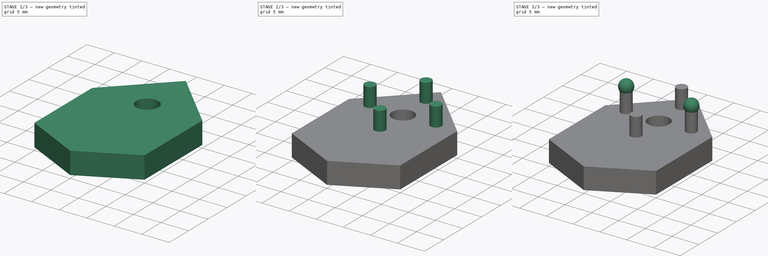
[diagram: build sequence overview — one tinted view per stage of 3, left to right]
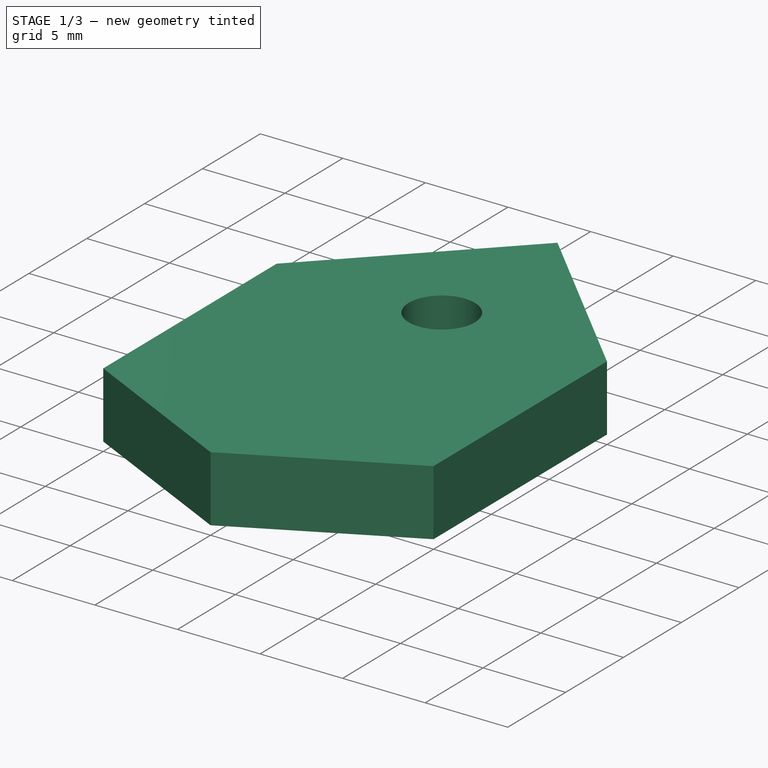
[diagram: stage 1 of 3 — iso view after this stage's code; geometry added in this stage tinted green]
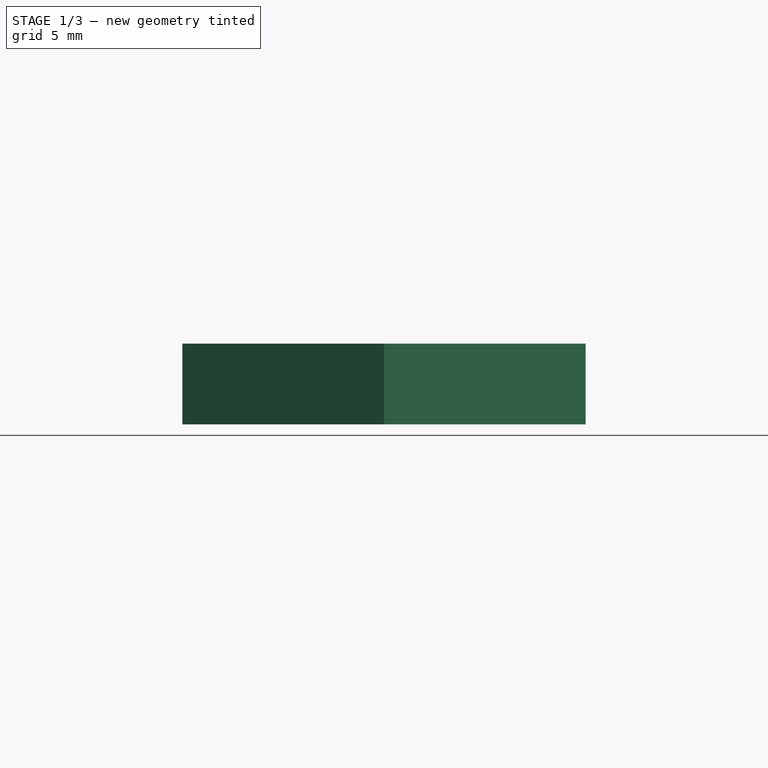
[diagram: stage 1 of 3 — front view after this stage's code; geometry added in this stage tinted green]
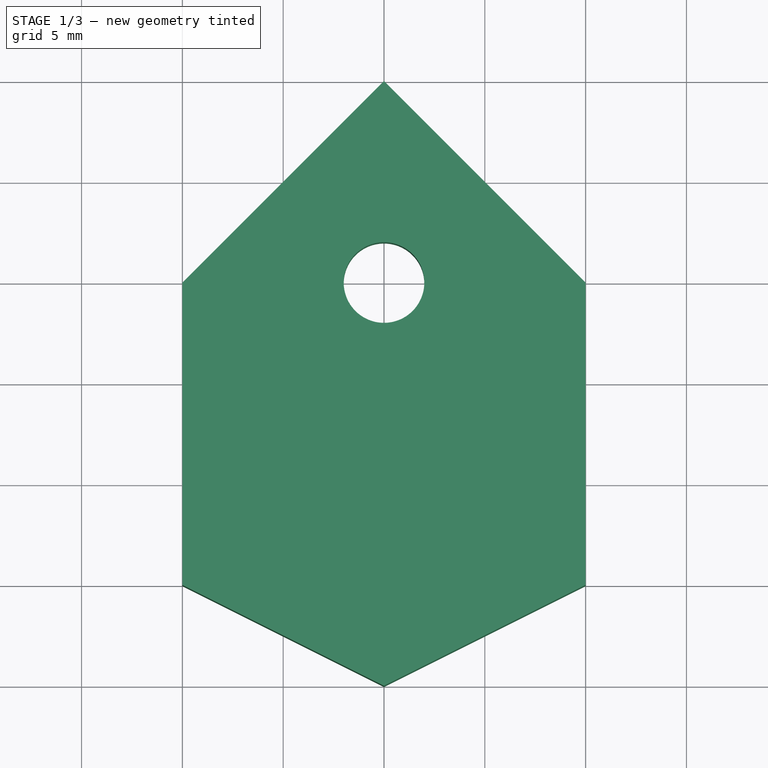
[diagram: stage 1 of 3 — top view after this stage's code; geometry added in this stage tinted green]
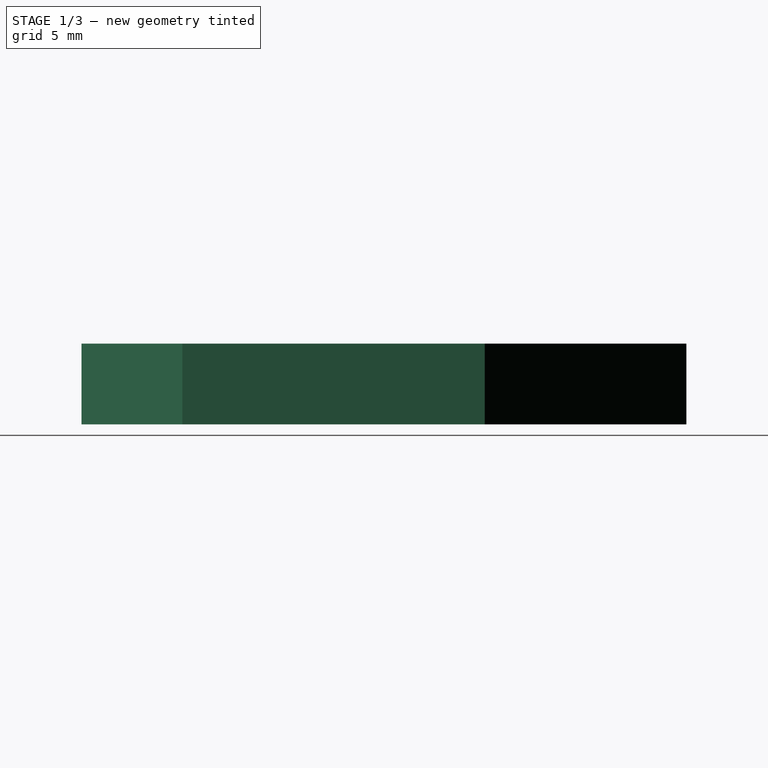
[diagram: stage 1 of 3 — right view after this stage's code; geometry added in this stage tinted green]
FCSTD DOCUMENT  (FreeCAD 0.18R4 (GitTag))
Label: monopole_mount
License: All rights reserved
LicenseURL: http://en.wikipedia.org/wiki/All_rights_reserved
objects: Sketcher::SketchObject×7, PartDesign::Pad×2, PartDesign::Revolution×2, PartDesign::Pocket×1, PartDesign::Body×1
note: 18 computed .brp shape members not serialized (recipe doc carries the construction recipe); baked Part::Feature solids carry a one-line shape summary decoded from their .brp

FEATURE [Sketcher::SketchObject] Sketch
  MapMode = 5
  Support = -> [XY_Plane]
  sketch-geometry (6):
    g0: LineSegment StartX=-10 StartY=0 StartZ=0 EndX=0 EndY=10 EndZ=0
    g1: LineSegment StartX=0 StartY=10 StartZ=0 EndX=10 EndY=0 EndZ=0
    g2: LineSegment StartX=10 StartY=0 StartZ=0 EndX=10 EndY=-15 EndZ=0
    g3: LineSegment StartX=10 StartY=-15 StartZ=0 EndX=0 EndY=-20 EndZ=0
    g4: LineSegment StartX=0 StartY=-20 StartZ=0 EndX=-10 EndY=-15 EndZ=0
    g5: LineSegment StartX=-10 StartY=-15 StartZ=0 EndX=-10 EndY=0 EndZ=0
  constraints (18):
    c: Coincident(g0,g1)
    c: Coincident(g1,g2)
    c: Coincident(g2,g3)
    c: Coincident(g3,g4)
    c: Coincident(g4,g5)
    c: Coincident(g5,g0)
    c: DistanceX(g-1,g1) = 10
    c: DistanceX(g0,g-1) = 10
    c: Vertical(g5)
    c: Vertical(g2)
    c: DistanceY(g2,g-1) = 15
    c: DistanceY(g4,g-1) = 15
    c: DistanceY(g-1,g0) = 10
    c: PointOnObject(g0,g-2)
    c: PointOnObject(g0,g-1)
    c: PointOnObject(g1,g-1)
    c: PointOnObject(g3,g-2)
    c: DistanceY(g3,g-1) = 20
FEATURE [PartDesign::Pad] Pad
  Length = 4
  Length2 = 100
  Profile = -> Sketch
  Type = 0
FEATURE [Sketcher::SketchObject] Sketch001
  MapMode = 5
  Placement = pos=(0,0,4) rot=(0,0,1;0rad)
  Support = -> [Pad]
  sketch-geometry (1):
    g0: Circle CenterX=0 CenterY=0 CenterZ=0 NormalX=0 NormalY=0 NormalZ=1 AngleXU=0 Radius=2
  constraints (2):
    c: Coincident(g-1,g0)
    c: Radius(g0) = 2
FEATURE [PartDesign::Pocket] Pocket
  BaseFeature = -> Pad
  Length = 5
  Length2 = 100
  Profile = -> Sketch001
  Type = 0
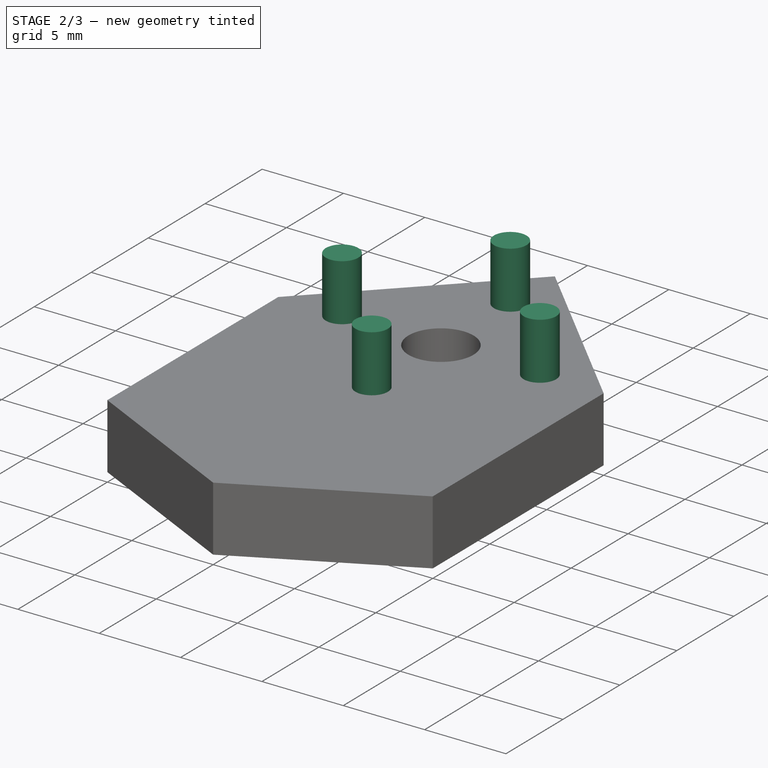
[diagram: stage 2 of 3 — iso view after this stage's code; geometry added in this stage tinted green]
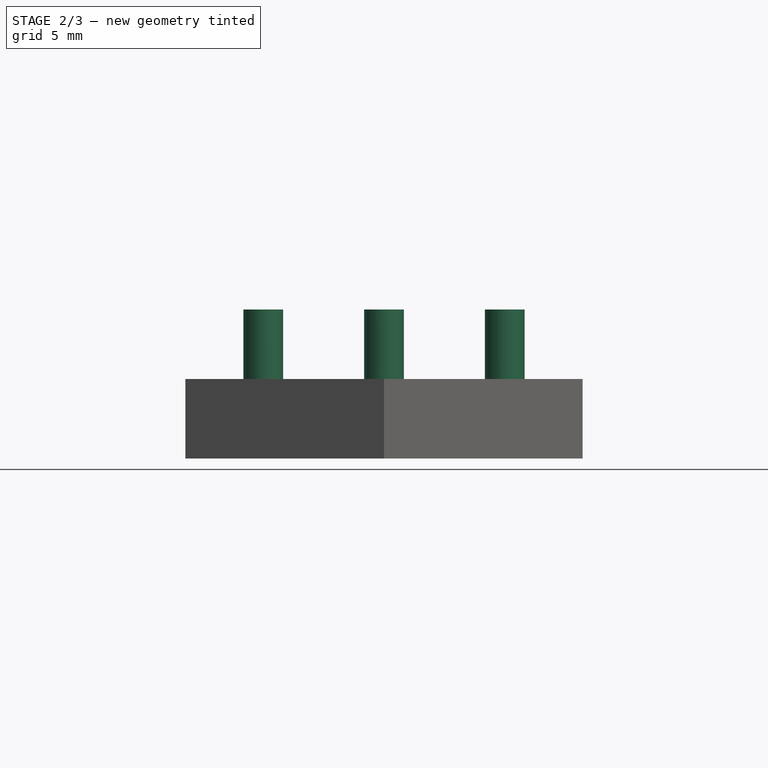
[diagram: stage 2 of 3 — front view after this stage's code; geometry added in this stage tinted green]
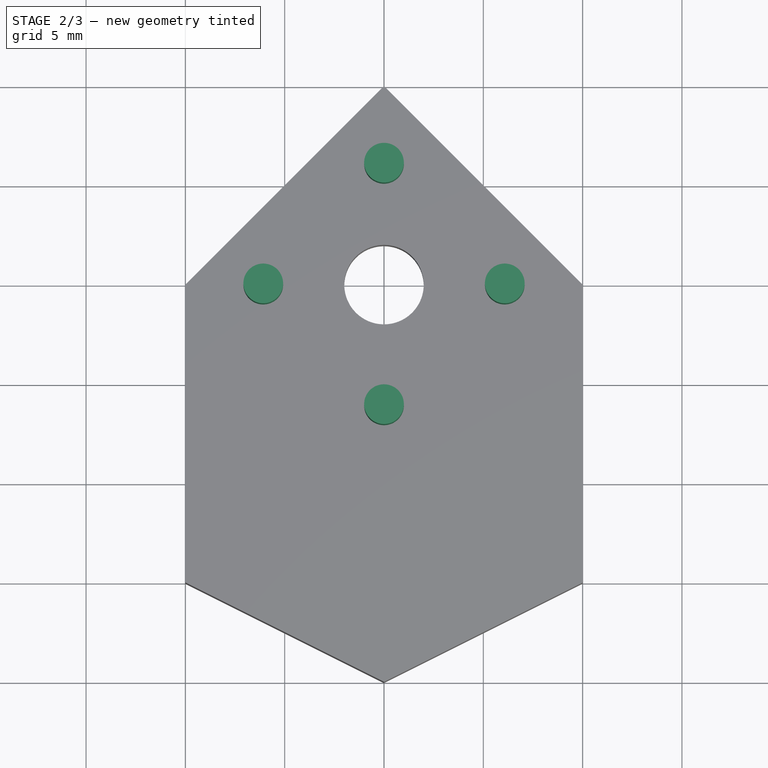
[diagram: stage 2 of 3 — top view after this stage's code; geometry added in this stage tinted green]
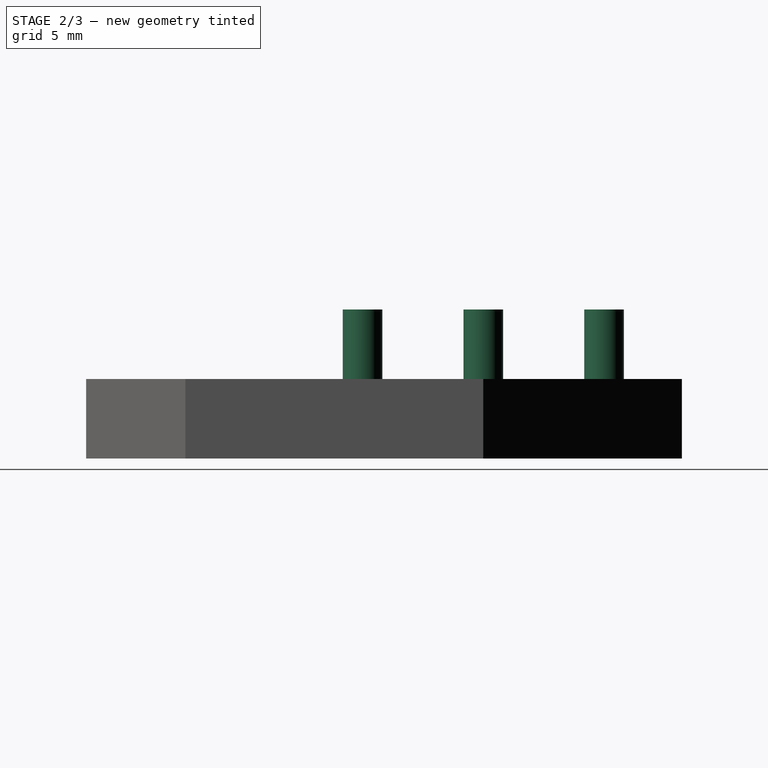
[diagram: stage 2 of 3 — right view after this stage's code; geometry added in this stage tinted green]
FEATURE [Sketcher::SketchObject] Sketch002
  MapMode = 5
  Placement = pos=(0,0,4) rot=(0,0,1;0rad)
  Support = -> [Pocket]
  sketch-geometry (4):
    g0: Circle CenterX=0 CenterY=6.08 CenterZ=0 NormalX=0 NormalY=0 NormalZ=1 AngleXU=0 Radius=1
    g1: Circle CenterX=-6.08 CenterY=0 CenterZ=0 NormalX=0 NormalY=0 NormalZ=1 AngleXU=0 Radius=1
    g2: Circle CenterX=6.08 CenterY=0 CenterZ=0 NormalX=0 NormalY=0 NormalZ=1 AngleXU=0 Radius=1
    g3: Circle CenterX=0 CenterY=-6.08 CenterZ=0 NormalX=0 NormalY=0 NormalZ=1 AngleXU=0 Radius=1
  constraints (12):
    c: PointOnObject(g0,g-2)
    c: PointOnObject(g2,g-1)
    c: PointOnObject(g1,g-1)
    c: PointOnObject(g3,g-2)
    c: DistanceY(g-1,g0) = 6.08
    c: DistanceY(g3,g-1) = 6.08
    c: DistanceX(g-1,g2) = 6.08
    c: DistanceX(g1,g-1) = 6.08
    c: Radius(g0) = 1
    c: Radius(g2) = 1
    c: Radius(g3) = 1
    c: Radius(g1) = 1
FEATURE [PartDesign::Pad] Pad001
  BaseFeature = -> Pocket
  Length = 3.5
  Length2 = 100
  Profile = -> Sketch002
  Type = 0
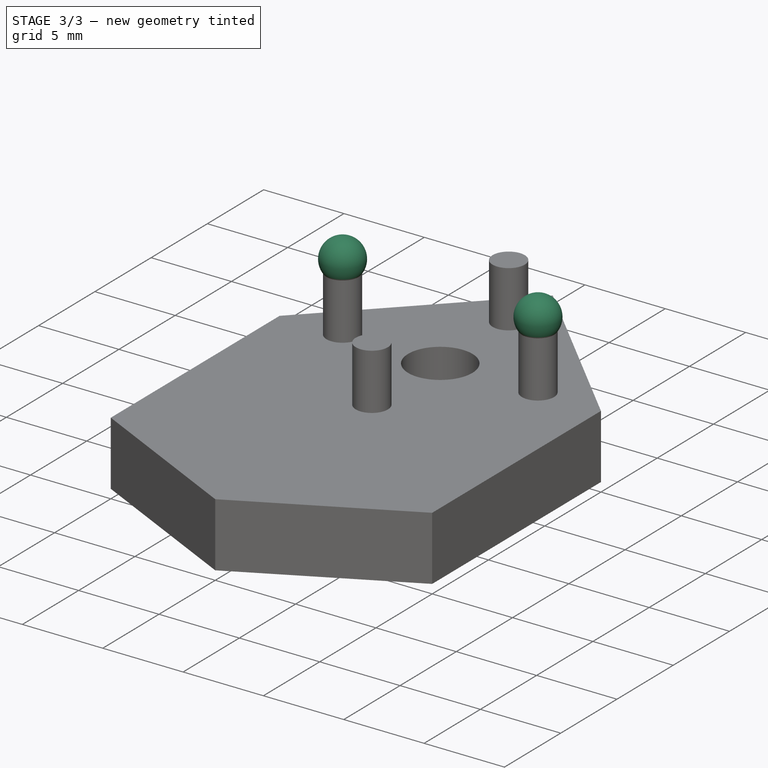
[diagram: stage 3 of 3 — iso view after this stage's code; geometry added in this stage tinted green]
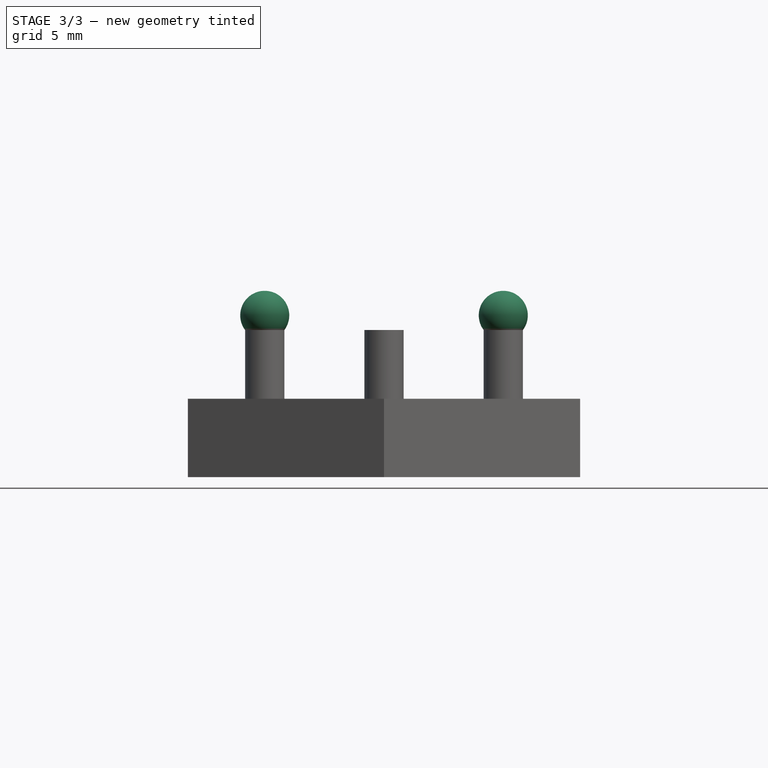
[diagram: stage 3 of 3 — front view after this stage's code; geometry added in this stage tinted green]
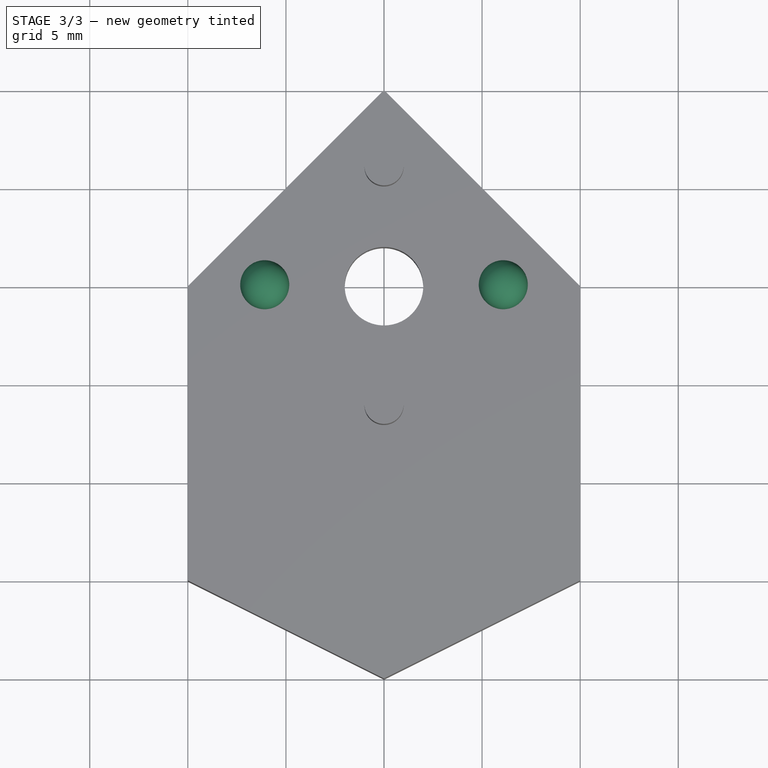
[diagram: stage 3 of 3 — top view after this stage's code; geometry added in this stage tinted green]
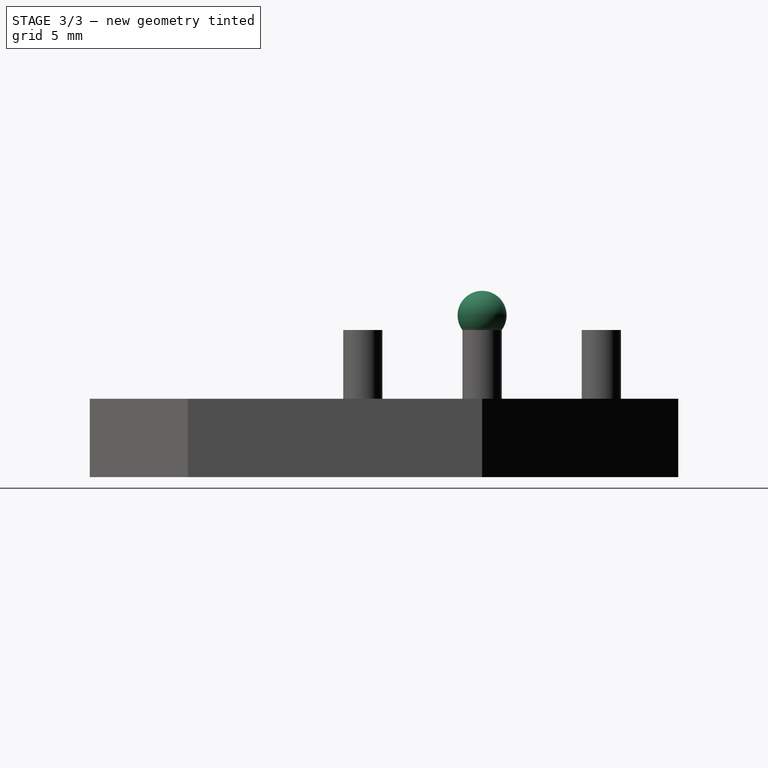
[diagram: stage 3 of 3 — right view after this stage's code; geometry added in this stage tinted green]
FEATURE [Sketcher::SketchObject] Sketch006
  MapMode = 5
  Placement = pos=(0,0,0) rot=(1,0,0;1.5708rad)
  sketch-geometry (3):
    g0: ArcOfCircle CenterX=-6.08 CenterY=8.25 CenterZ=0 NormalX=0 NormalY=0 NormalZ=1 AngleXU=0 Radius=1.25 StartAngle=1.5708 EndAngle=3.78509
    g1: LineSegment StartX=-7.08 StartY=7.5 StartZ=0 EndX=-6.08 EndY=7.5 EndZ=0
    g2: LineSegment StartX=-6.08 StartY=7.5 StartZ=0 EndX=-6.08 EndY=9.5 EndZ=0
  constraints (10):
    c: DistanceX(g0,g-1) = 6.08
    c: DistanceX(g0,g-1) = 6.08
    c: DistanceY(g-1,g0) = 9.5
    c: DistanceX(g0,g0) = 1
    c: Coincident(g1,g2)
    c: Coincident(g0,g1)
    c: Coincident(g0,g2)
    c: DistanceY(g-1,g1) = 7.5
    c: DistanceX(g0,g1) = 1
    c: DistanceY(g0,g0) = 0.75
FEATURE [Sketcher::SketchObject] Sketch007
  MapMode = 5
  Placement = pos=(0,0,0) rot=(1,0,0;1.5708rad)
  sketch-geometry (2):
    g0: LineSegment StartX=-7.08 StartY=7.5 StartZ=0 EndX=-6.08 EndY=7.5 EndZ=0
    g1: LineSegment StartX=-6.08 StartY=7.5 StartZ=0 EndX=-6.08 EndY=9.5 EndZ=0
  constraints (5):
    c: DistanceX(g1,g-1) = 6.08
    c: DistanceY(g-1,g1) = 9.5
    c: Coincident(g0,g1)
    c: DistanceY(g-1,g0) = 7.5
    c: DistanceX(g0,g0) = 1
FEATURE [PartDesign::Revolution] Revolution
  Angle = 360
  Axis = (0,2e-16,1)
  Base = (-6.08,1.7e-15,7.5)
  BaseFeature = -> Pad001
  Profile = -> Sketch006
  ReferenceAxis = -> Sketch007 [Edge2]
FEATURE [Sketcher::SketchObject] Sketch008
  MapMode = 5
  Placement = pos=(0,0,0) rot=(1,0,0;1.5708rad)
  sketch-geometry (3):
    g0: ArcOfCircle CenterX=6.08 CenterY=8.25 CenterZ=0 NormalX=0 NormalY=0 NormalZ=1 AngleXU=0 Radius=1.25 StartAngle=5.63968 EndAngle=7.85398
    g1: LineSegment StartX=7.08 StartY=7.5 StartZ=0 EndX=6.08 EndY=7.5 EndZ=0
    g2: LineSegment StartX=6.08 StartY=7.5 StartZ=0 EndX=6.08 EndY=9.5 EndZ=0
  constraints (3):
    c: Coincident(g1,g2)
    c: Coincident(g0,g1)
    c: Coincident(g0,g2)
FEATURE [Sketcher::SketchObject] Sketch009
  MapMode = 5
  Placement = pos=(0,0,0) rot=(1,0,0;1.5708rad)
  sketch-geometry (1):
    g0: LineSegment StartX=6.08 StartY=7.5 StartZ=0 EndX=6.08 EndY=9.5 EndZ=0
FEATURE [PartDesign::Revolution] Revolution001
  Angle = 360
  Axis = (0,2e-16,1)
  Base = (6.08,1.7e-15,7.5)
  BaseFeature = -> Revolution
  Profile = -> Sketch008
  ReferenceAxis = -> Sketch009 [Edge1]
  Reversed = true
FEATURE [PartDesign::Body] Body
  Group = -> [Sketch,Pad,Sketch001,Pocket,Sketch002,Pad001,Sketch006,Sketch007,Revolution,Sketch008,Sketch009,Revolution001]
  Origin = -> Origin
  Tip = -> Revolution001
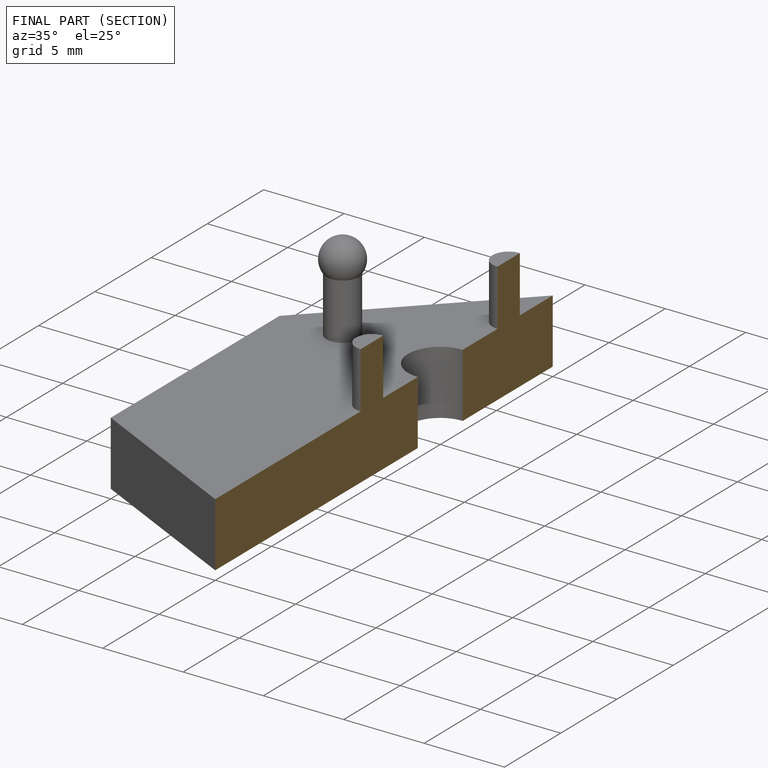
[diagram: finished part — half-section view (interior)]
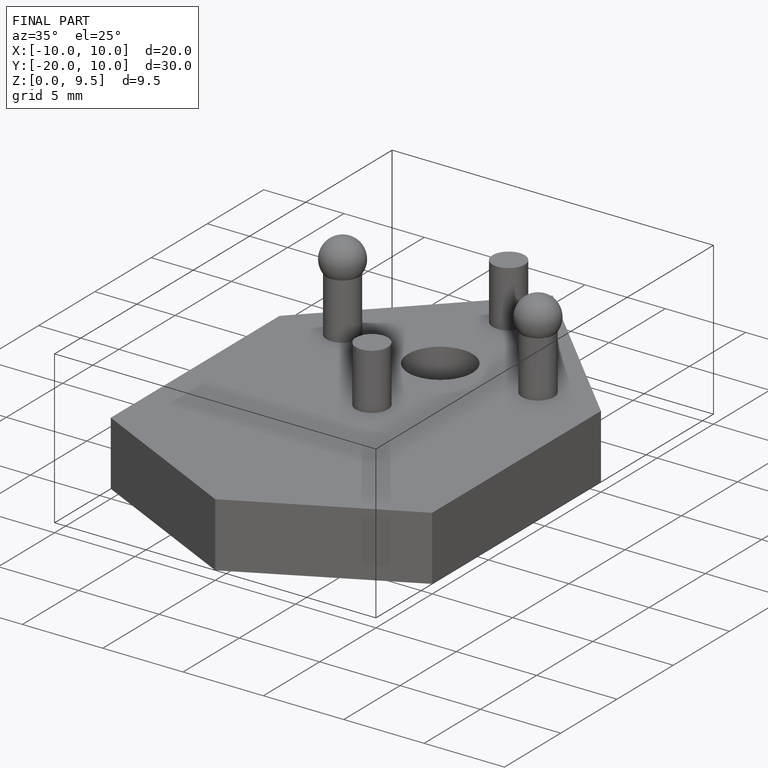
[diagram: finished part — iso view with bounding-box wireframe]
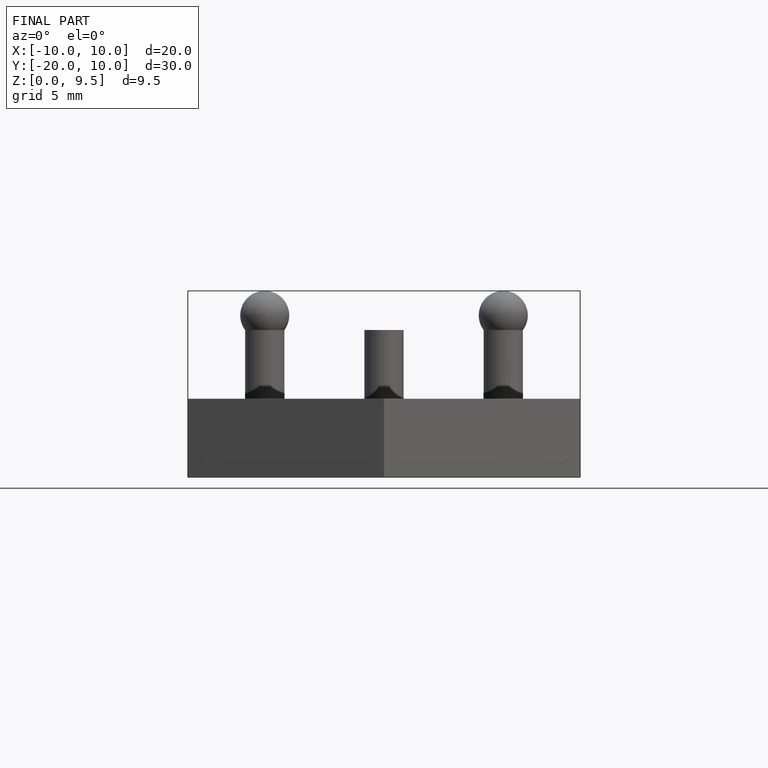
[diagram: finished part — front view with bounding-box wireframe]
